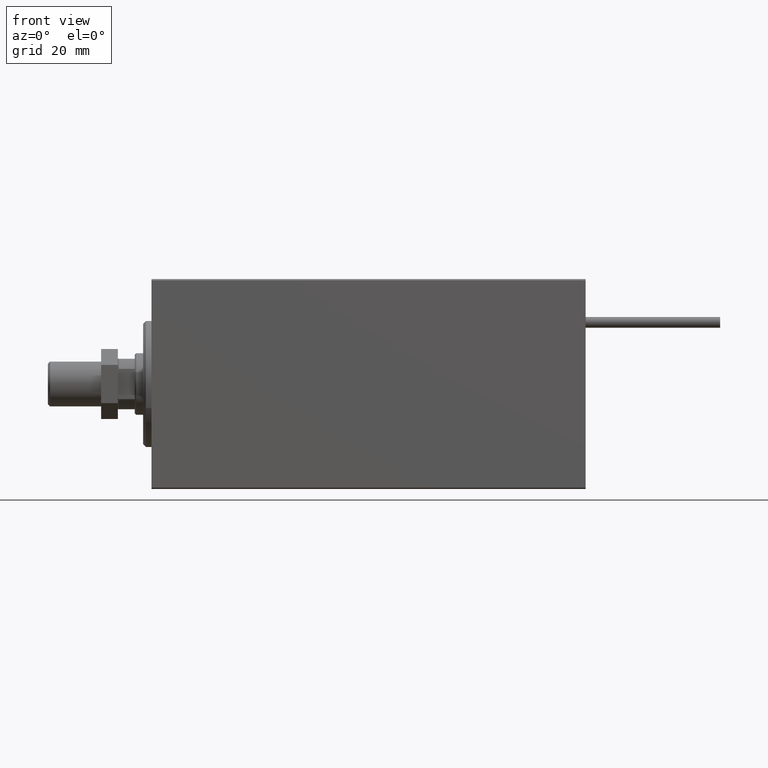
[diagram: clean part render]
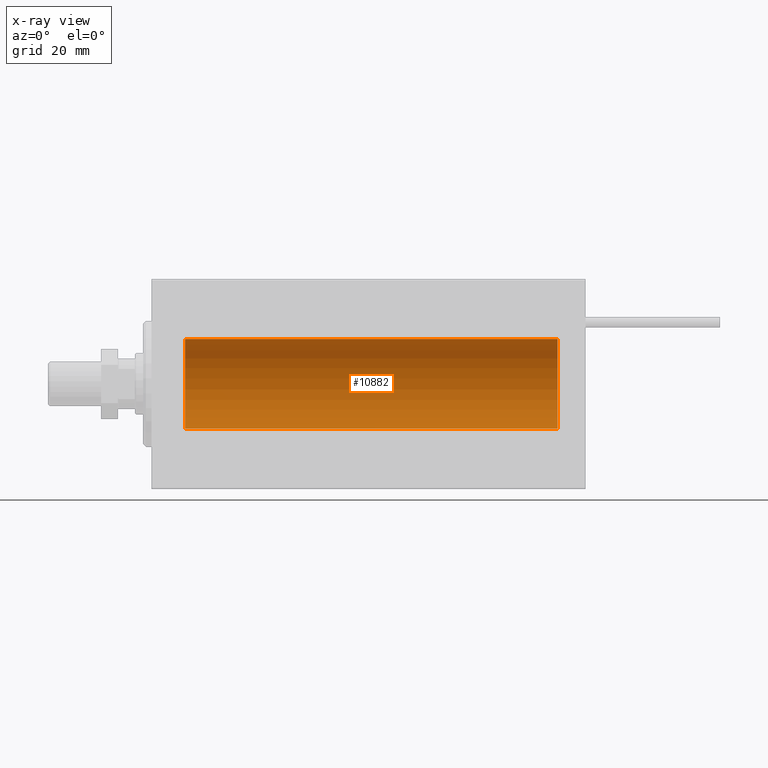
[diagram: x-ray — body ghosted, one internal face saturated and labeled with its STEP entity id]
A machine part, front view, then the same camera in x-ray: the body is ghosted and one INTERNAL B-rep face — a face not visible from any outside direction — is saturated and labeled: STEP entity #10882.
In plain terms, the highlighted cylindrical surface (partial cylindrical patch) has radius 16 mm, axis along (-1, -0, -0).
Its self-contained STEP definition (entity closure, byte-faithful):
#67 = CARTESIAN_POINT ( 'NONE',  ( 142.2380853723773839, 1.999903730784139633, -15.87451999516785506 ) ) ;
#690 = AXIS2_PLACEMENT_3D ( 'NONE', #36350, #16056, #39690 ) ;
#1222 = VERTEX_POINT ( 'NONE', #11037 ) ;
#1225 = DIRECTION ( 'NONE',  ( 0.000000000000000000, 0.000000000000000000, 1.000000000000000000 ) ) ;
#1600 = CARTESIAN_POINT ( 'NONE',  ( 144.4999999999999716, 0.1305944228192324752, -16.00000000000000355 ) ) ;
#1646 = DIRECTION ( 'NONE',  ( -1.000000000000000000, -0.000000000000000000, -0.000000000000000000 ) ) ;
#1832 = DIRECTION ( 'NONE',  ( -1.000000000000000000, -0.000000000000000000, -0.000000000000000000 ) ) ;
#1843 = CARTESIAN_POINT ( 'NONE',  ( 144.4356905292612510, 0.5198215460038806413, -15.99206840425678955 ) ) ;
#1844 = ORIENTED_EDGE ( 'NONE', *, *, #49418, .F. ) ;
#2614 = CARTESIAN_POINT ( 'NONE',  ( 24.50000000000000000, -2.103177090749212087E-15, -16.00000000000000000 ) ) ;
#3419 = CARTESIAN_POINT ( 'NONE',  ( 140.7643190150173211, 1.002241074716263114, -15.96895041604536125 ) ) ;
#3923 = CARTESIAN_POINT ( 'NONE',  ( 140.9938928753175560, 1.322357532253789492, -15.94553003295878746 ) ) ;
#4021 = ORIENTED_EDGE ( 'NONE', *, *, #18488, .T. ) ;
#4146 = CARTESIAN_POINT ( 'NONE',  ( 28.49999999999999645, 1.959434851239213200E-15, -16.00000000000000000 ) ) ;
#4178 = CARTESIAN_POINT ( 'NONE',  ( 140.5000000000000000, 0.1322838750249081818, -16.00000000000000000 ) ) ;
#4358 = ORIENTED_EDGE ( 'NONE', *, *, #25866, .T. ) ;
#4665 = CARTESIAN_POINT ( 'NONE',  ( 145.0000000000000000, 0.000000000000000000, 16.00000000000000000 ) ) ;
#5660 = ORIENTED_EDGE ( 'NONE', *, *, #11823, .F. ) ;
#5718 = EDGE_CURVE ( 'NONE', #44281, #49146, #37976, .T. ) ;
#5970 = CARTESIAN_POINT ( 'NONE',  ( 25.49340818440418488, 1.747750603376301726, -15.90457341008072056 ) ) ;
#7278 = CARTESIAN_POINT ( 'NONE',  ( 140.5129947599158129, 0.2623312429553131264, -15.99836091803360283 ) ) ;
#7292 = AXIS2_PLACEMENT_3D ( 'NONE', #29474, #13530, #1225 ) ;
#7844 = CARTESIAN_POINT ( 'NONE',  ( 145.0000000000000000, 0.000000000000000000, 16.00000000000000000 ) ) ;
#8151 = CARTESIAN_POINT ( 'NONE',  ( 145.0000000000000000, 1.959434878635765131E-15, -16.00000000000000000 ) ) ;
#8775 = CARTESIAN_POINT ( 'NONE',  ( 144.4999999999999716, 1.959434851248285101E-15, -16.00000000000000000 ) ) ;
#9334 = LINE ( 'NONE', #48350, #16919 ) ;
#9541 = CARTESIAN_POINT ( 'NONE',  ( 144.2348267067494874, 1.003662148334369064, -15.96885838080210362 ) ) ;
#10057 = CARTESIAN_POINT ( 'NONE',  ( 27.38617757057270197, 1.797743958659261398, -15.89876304682112718 ) ) ;
#10267 = CIRCLE ( 'NONE', #44710, 16.00000000000000000 ) ;
#10813 = CARTESIAN_POINT ( 'NONE',  ( 25.97468243540595623, 1.947280337074166257, -15.88137861827786779 ) ) ;
#10882 = ADVANCED_FACE ( 'NONE', ( #47890 ), #23793, .F. ) ;
#11037 = CARTESIAN_POINT ( 'NONE',  ( 12.00000000000001066, 0.000000000000000000, 16.00000000000000000 ) ) ;
#11063 = CARTESIAN_POINT ( 'NONE',  ( 28.39783726498896144, 0.6445079780200569930, -15.98747331501412816 ) ) ;
#11360 = CARTESIAN_POINT ( 'NONE',  ( 142.7625158300789678, 1.987008272775779183, -15.87616016863256618 ) ) ;
#11823 = EDGE_CURVE ( 'NONE', #27453, #47346, #32718, .T. ) ;
#11840 = ORIENTED_EDGE ( 'NONE', *, *, #5718, .F. ) ;
#12074 = CARTESIAN_POINT ( 'NONE',  ( 28.50000000000001066, 0.1305944228192323919, -16.00000000000000711 ) ) ;
#12600 = LINE ( 'NONE', #4665, #41936 ) ;
#12984 = B_SPLINE_CURVE_WITH_KNOTS ( 'NONE', 3,
 ( #20065, #4178, #7278, #16203, #23677, #22929, #3419, #34729, #3923, #15197, #39343, #35237, #67, #46523, #11360, #27032, #16709, #28027, #13375, #47534, #25197, #16974, #43927, #9541, #16460, #44440, #1843, #36000, #1600, #8775 ),
 .UNSPECIFIED., .F., .F.,
 ( 4, 2, 2, 2, 2, 2, 2, 2, 2, 2, 2, 2, 2, 2, 4 ),
 ( 9.522221228548788225E-19, 0.0003911894522870946155, 0.0007823789045741882551, 0.001173568356861281895, 0.001564757809148375426, 0.002347136713722621035, 0.003129515618296866645, 0.003520705070583989450, 0.003911894522871112688, 0.004303083975158234625, 0.004694273427445358297, 0.005085462879732480235, 0.005476652332019603907, 0.005867841784306726712, 0.006259031236593849516 ),
 .UNSPECIFIED. ) ;
#13375 = CARTESIAN_POINT ( 'NONE',  ( 143.5031124703503167, 1.735145127817741439, -15.90580292899658765 ) ) ;
#13530 = DIRECTION ( 'NONE',  ( -1.000000000000000000, 0.000000000000000000, 0.000000000000000000 ) ) ;
#13654 = CARTESIAN_POINT ( 'NONE',  ( 24.56388673317936622, 0.5181437283162044771, -15.99211983514074653 ) ) ;
#13736 = EDGE_LOOP ( 'NONE', ( #32042, #5660, #4021, #33901, #1844, #4358, #11840, #33114 ) ) ;
#13906 = CARTESIAN_POINT ( 'NONE',  ( 24.51299475991586974, 0.2623312429553280034, -15.99836091803359750 ) ) ;
#14402 = CARTESIAN_POINT ( 'NONE',  ( 24.76431901501739219, 1.002241074716281766, -15.96895041604536658 ) ) ;
#15197 = CARTESIAN_POINT ( 'NONE',  ( 141.2704388826020931, 1.598790766515120421, -15.92099550861381019 ) ) ;
#15372 = VECTOR ( 'NONE', #17971, 1000.000000000000000 ) ;
#15423 = CARTESIAN_POINT ( 'NONE',  ( 28.48690924832126470, 0.2632563459770842496, -15.99834873924246814 ) ) ;
#15671 = CARTESIAN_POINT ( 'NONE',  ( 28.00737160312429452, 1.321075116345886924, -15.94564302722882942 ) ) ;
#16056 = DIRECTION ( 'NONE',  ( -1.000000000000000000, -0.000000000000000000, -0.000000000000000000 ) ) ;
#16203 = CARTESIAN_POINT ( 'NONE',  ( 140.5638867331793449, 0.5181437283161880458, -15.99211983514074298 ) ) ;
#16460 = CARTESIAN_POINT ( 'NONE',  ( 144.2974992860503392, 0.8866640484200145611, -15.97587307151817804 ) ) ;
#16709 = CARTESIAN_POINT ( 'NONE',  ( 143.1438696803301411, 1.898058445420874651, -15.88709929148890687 ) ) ;
#16919 = VECTOR ( 'NONE', #1646, 1000.000000000000000 ) ;
#16974 = CARTESIAN_POINT ( 'NONE',  ( 144.0073716031241986, 1.321075116345887146, -15.94564302722882587 ) ) ;
#17511 = DIRECTION ( 'NONE',  ( 0.000000000000000000, 0.000000000000000000, 1.000000000000000000 ) ) ;
#17664 = VERTEX_POINT ( 'NONE', #40311 ) ;
#17763 = CARTESIAN_POINT ( 'NONE',  ( 26.62985308350499025, 2.000047931387146871, -15.87450182760079898 ) ) ;
#17954 = CARTESIAN_POINT ( 'NONE',  ( 145.0000000000000000, 1.959434878635765131E-15, -16.00000000000000000 ) ) ;
#17971 = DIRECTION ( 'NONE',  ( -1.000000000000000000, -0.000000000000000000, -0.000000000000000000 ) ) ;
#18488 = EDGE_CURVE ( 'NONE', #27453, #1222, #12600, .T. ) ;
#18510 = CARTESIAN_POINT ( 'NONE',  ( 24.50000000000000000, 0.1322838750249236695, -16.00000000000000000 ) ) ;
#20065 = CARTESIAN_POINT ( 'NONE',  ( 140.4999999999999716, -1.891165455471350260E-14, -16.00000000000000000 ) ) ;
#21716 = CARTESIAN_POINT ( 'NONE',  ( 140.4999999999999716, -1.891165455471350260E-14, -16.00000000000000000 ) ) ;
#22909 = EDGE_CURVE ( 'NONE', #44281, #31100, #12984, .T. ) ;
#22929 = CARTESIAN_POINT ( 'NONE',  ( 140.7028658525177605, 0.8874076679346529772, -15.97583181162461052 ) ) ;
#23381 = CARTESIAN_POINT ( 'NONE',  ( 27.71967657442277044, 1.590393755196006786, -15.92092783521423627 ) ) ;
#23677 = CARTESIAN_POINT ( 'NONE',  ( 140.6024112994440145, 0.6452446332037922172, -15.98744362947834574 ) ) ;
#23793 = CYLINDRICAL_SURFACE ( 'NONE', #690, 16.00000000000000000 ) ;
#24820 = VERTEX_POINT ( 'NONE', #31340 ) ;
#25197 = CARTESIAN_POINT ( 'NONE',  ( 143.8207582482892803, 1.507649250492133497, -15.92908549642226390 ) ) ;
#25723 = CARTESIAN_POINT ( 'NONE',  ( 27.50311247035039486, 1.735145127817748989, -15.90580292899658765 ) ) ;
#25866 = EDGE_CURVE ( 'NONE', #24820, #49146, #37675, .T. ) ;
#26172 = DIRECTION ( 'NONE',  ( -1.000000000000000000, -0.000000000000000000, -0.000000000000000000 ) ) ;
#27032 = CARTESIAN_POINT ( 'NONE',  ( 143.0191309771010708, 1.935876924222063256, -15.88247600692092831 ) ) ;
#27453 = VERTEX_POINT ( 'NONE', #7844 ) ;
#28027 = CARTESIAN_POINT ( 'NONE',  ( 143.3861775705726700, 1.797743958659246744, -15.89876304682112362 ) ) ;
#29337 = CARTESIAN_POINT ( 'NONE',  ( 24.60241129944407135, 0.6452446332038132004, -15.98744362947834929 ) ) ;
#29474 = CARTESIAN_POINT ( 'NONE',  ( 145.0000000000000000, 0.000000000000000000, 0.000000000000000000 ) ) ;
#30447 = EDGE_CURVE ( 'NONE', #1222, #17664, #10267, .T. ) ;
#31100 = VERTEX_POINT ( 'NONE', #32487 ) ;
#31340 = CARTESIAN_POINT ( 'NONE',  ( 24.50000000000000000, -2.103177090749212087E-15, -16.00000000000000000 ) ) ;
#32042 = ORIENTED_EDGE ( 'NONE', *, *, #47876, .F. ) ;
#32487 = CARTESIAN_POINT ( 'NONE',  ( 144.4999999999999716, 1.959434851248285101E-15, -16.00000000000000000 ) ) ;
#32684 = CARTESIAN_POINT ( 'NONE',  ( 12.00000000000001066, 0.000000000000000000, 0.000000000000000000 ) ) ;
#32718 = CIRCLE ( 'NONE', #7292, 16.00000000000000000 ) ;
#33114 = ORIENTED_EDGE ( 'NONE', *, *, #22909, .T. ) ;
#33435 = CARTESIAN_POINT ( 'NONE',  ( 26.76251583007899271, 1.987008272775795614, -15.87616016863256263 ) ) ;
#33901 = ORIENTED_EDGE ( 'NONE', *, *, #30447, .T. ) ;
#34188 = CARTESIAN_POINT ( 'NONE',  ( 24.90948495147900843, 1.219564485341768867, -15.95382484008323054 ) ) ;
#34729 = CARTESIAN_POINT ( 'NONE',  ( 140.9094849514790155, 1.219564485341748661, -15.95382484008323409 ) ) ;
#35202 = CARTESIAN_POINT ( 'NONE',  ( 28.29749928605041021, 0.8866640484200126737, -15.97587307151818514 ) ) ;
#35237 = CARTESIAN_POINT ( 'NONE',  ( 141.9746824354058674, 1.947280337074145384, -15.88137861827787489 ) ) ;
#36000 = CARTESIAN_POINT ( 'NONE',  ( 144.4869092483211830, 0.2632563459770912995, -15.99834873924246814 ) ) ;
#36350 = CARTESIAN_POINT ( 'NONE',  ( 145.0000000000000000, 0.000000000000000000, 0.000000000000000000 ) ) ;
#37277 = CARTESIAN_POINT ( 'NONE',  ( 26.23808537237744787, 1.999903730784160505, -15.87451999516786216 ) ) ;
#37675 = B_SPLINE_CURVE_WITH_KNOTS ( 'NONE', 3,
 ( #2614, #18510, #13906, #13654, #29337, #41877, #14402, #34188, #45991, #44971, #5970, #10813, #37277, #17763, #33435, #49078, #45228, #10057, #25723, #23381, #50599, #15671, #46980, #50087, #35202, #11063, #50335, #15423, #12074, #4146 ),
 .UNSPECIFIED., .F., .F.,
 ( 4, 2, 2, 2, 2, 2, 2, 2, 2, 2, 2, 2, 2, 2, 4 ),
 ( 6.061354251518217081E-19, 0.0003911894522871152153, 0.0007823789045742298885, 0.001173568356861344345, 0.001564757809148459126, 0.002347136713722688690, 0.003129515618296918687, 0.003520705070584038889, 0.003911894522871159526, 0.004303083975158279728, 0.004694273427445399931, 0.005085462879732520133, 0.005476652332019640336, 0.005867841784306760539, 0.006259031236593880741 ),
 .UNSPECIFIED. ) ;
#37976 = LINE ( 'NONE', #45428, #15372 ) ;
#39343 = CARTESIAN_POINT ( 'NONE',  ( 141.4934081844041316, 1.747750603376278189, -15.90457341008072056 ) ) ;
#39690 = DIRECTION ( 'NONE',  ( 0.000000000000000000, 0.000000000000000000, 1.000000000000000000 ) ) ;
#40311 = CARTESIAN_POINT ( 'NONE',  ( 12.00000000000001066, 1.959434878635765131E-15, -16.00000000000000000 ) ) ;
#41877 = CARTESIAN_POINT ( 'NONE',  ( 24.70286585251779954, 0.8874076679346754037, -15.97583181162461408 ) ) ;
#41936 = VECTOR ( 'NONE', #1832, 1000.000000000000000 ) ;
#43927 = CARTESIAN_POINT ( 'NONE',  ( 144.0900152810011434, 1.220169175415120710, -15.95377581882983442 ) ) ;
#44281 = VERTEX_POINT ( 'NONE', #21716 ) ;
#44440 = CARTESIAN_POINT ( 'NONE',  ( 144.3978372649889366, 0.6445079780200602126, -15.98747331501412816 ) ) ;
#44710 = AXIS2_PLACEMENT_3D ( 'NONE', #32684, #49088, #17511 ) ;
#44848 = VECTOR ( 'NONE', #26172, 1000.000000000000000 ) ;
#44971 = CARTESIAN_POINT ( 'NONE',  ( 25.27043888260214999, 1.598790766515153061, -15.92099550861380486 ) ) ;
#45228 = CARTESIAN_POINT ( 'NONE',  ( 27.14386968033013758, 1.898058445420889750, -15.88709929148890510 ) ) ;
#45428 = CARTESIAN_POINT ( 'NONE',  ( 145.0000000000000000, 1.959434878635765131E-15, -16.00000000000000000 ) ) ;
#45991 = CARTESIAN_POINT ( 'NONE',  ( 24.99389287531753823, 1.322357532253824131, -15.94553003295876970 ) ) ;
#46523 = CARTESIAN_POINT ( 'NONE',  ( 142.6298530835049405, 2.000047931387129552, -15.87450182760080608 ) ) ;
#46930 = CARTESIAN_POINT ( 'NONE',  ( 28.49999999999999645, 1.959434851239213200E-15, -16.00000000000000000 ) ) ;
#46980 = CARTESIAN_POINT ( 'NONE',  ( 28.09001528100123579, 1.220169175415121154, -15.95377581882983975 ) ) ;
#47346 = VERTEX_POINT ( 'NONE', #8151 ) ;
#47534 = CARTESIAN_POINT ( 'NONE',  ( 143.7196765744226923, 1.590393755196001679, -15.92092783521423627 ) ) ;
#47876 = EDGE_CURVE ( 'NONE', #47346, #31100, #9334, .T. ) ;
#47890 = FACE_OUTER_BOUND ( 'NONE', #13736, .T. ) ;
#48350 = CARTESIAN_POINT ( 'NONE',  ( 145.0000000000000000, 1.959434878635765131E-15, -16.00000000000000000 ) ) ;
#49078 = CARTESIAN_POINT ( 'NONE',  ( 27.01913097710113121, 1.935876924222081907, -15.88247600692093187 ) ) ;
#49088 = DIRECTION ( 'NONE',  ( -1.000000000000000000, 0.000000000000000000, 0.000000000000000000 ) ) ;
#49146 = VERTEX_POINT ( 'NONE', #46930 ) ;
#49261 = LINE ( 'NONE', #17954, #44848 ) ;
#49418 = EDGE_CURVE ( 'NONE', #24820, #17664, #49261, .T. ) ;
#50087 = CARTESIAN_POINT ( 'NONE',  ( 28.23482670674955486, 1.003662148334367954, -15.96885838080210718 ) ) ;
#50335 = CARTESIAN_POINT ( 'NONE',  ( 28.43569052926130425, 0.5198215460038758673, -15.99206840425679665 ) ) ;
#50599 = CARTESIAN_POINT ( 'NONE',  ( 27.82075824828932653, 1.507649250492135717, -15.92908549642227101 ) ) ;